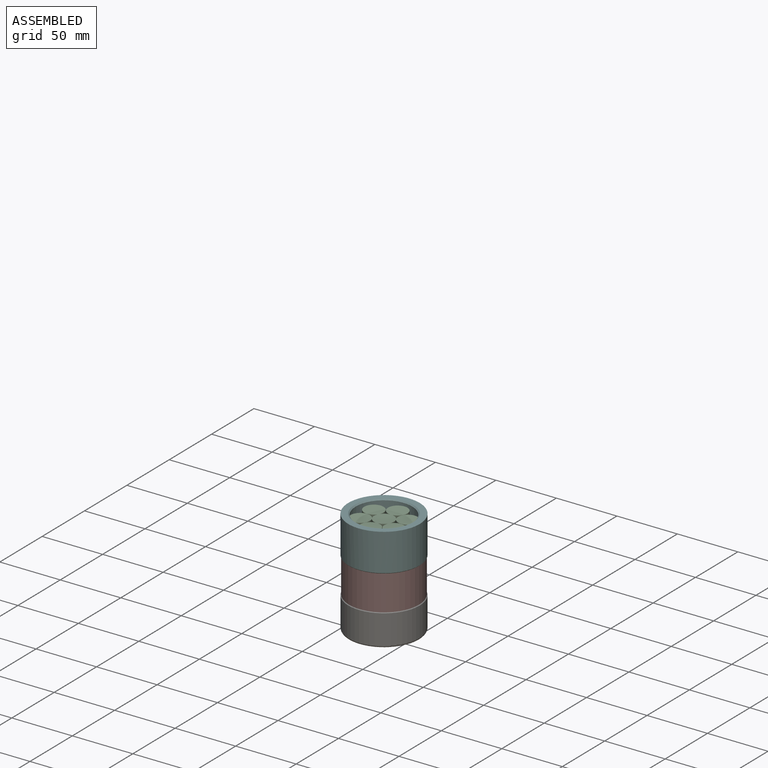
[diagram: assembled view]
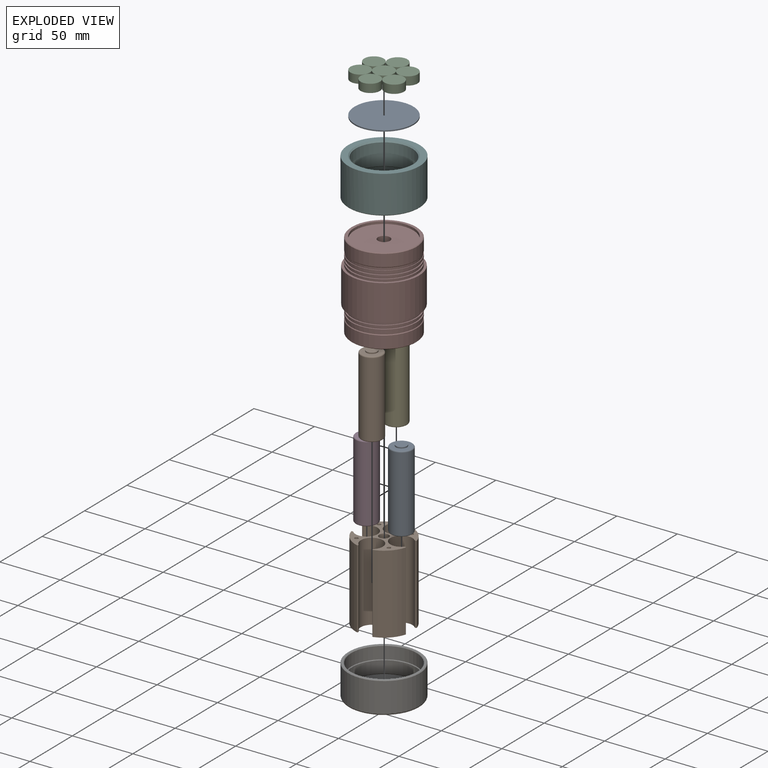
[diagram: exploded view]
GUIDED TOUR — MATED ASSEMBLY (Onshape document c5e5688a3280cf139b239090, AutoMate assembly c5e5688a3280cf139b239090_5ce9f32d915b6a077fe3f920_f21071393717250572982cae_default)

This assembly has 10 components, labeled P0..P9 below (a component is one placed occurrence of a part; the same part can appear more than once), held together by 9 mates. A mate is a constraint between two components; its type names the relative motion it leaves free:
  FASTENED — locks the two components together rigidly (no relative motion).
Axis/direction vectors are unit vectors and 'through' points are millimeter coordinates, both in the assembly's world frame.

MATES
  1. FASTENED "Fastened 3": P0 <-> P9, direction (0.000, 0.000, -1.000) through (-45.72, -31.81, -96.39) mm
  2. FASTENED "Fastened 5": P3 <-> P9, direction (0.000, 0.000, -1.000) through (-74.52, -31.81, -96.39) mm
  3. FASTENED "Fastened 9": P5 <-> P7, direction (0.000, 0.000, -1.000) through (-60.12, -31.81, -45.89) mm
  4. FASTENED "Fastened 7": P8 <-> P7, direction (0.000, 0.000, -1.000) through (-60.12, -31.81, -26.39) mm
  5. FASTENED "Fastened 4": P4 <-> P9, direction (0.000, 0.000, -1.000) through (-60.12, -17.41, -96.39) mm
  6. FASTENED "Fastened 8": P6 <-> P7, direction (0.000, 0.000, 1.000) through (-60.12, -31.81, -96.39) mm
  7. FASTENED "Fastened 1": P1 <-> P9, direction (0.000, 0.000, -1.000) through (-60.12, -46.21, -96.39) mm
  8. FASTENED "Fastened 6": P9 <-> P7, direction (0.000, 0.000, 1.000) through (-60.12, -31.81, -31.39) mm
  9. FASTENED "Fastened 2": P2 <-> P8, direction (0.000, 0.000, -1.000) through (-60.12, -31.81, -25.39) mm

ASSEMBLY ORDER
  1. P9 — the base component [order heuristic]
  2. P0 — core [order heuristic]
  3. P1 — core [order heuristic]
  4. P3 — core [order heuristic]
  5. P4 — core [order heuristic]
  6. P7 — core [order heuristic]
  7. P6 — core [order heuristic]
  8. P5 — core [order heuristic]
  9. P8 [order verified]
  10. P2 [order verified]
Order-tag legend:
  [order verified] — this step's position reverses a verified removal order: the component was checked to insert without passing through the ones already placed.
  [order heuristic] — the first 8 components form the assembly's core: parts whose collision-free extraction could not be verified, listed in mate-graph order.

Of the 10 components, 1 carries the full construction recipe — the FeatureScript program that regenerates the part's solid from scratch; the rest are supplied as boundary geometry only.
Each toured component is shown spotlighted twice — in the assembled view, then in the exploded view, where a leader line traces a displaced component back to its assembled socket (saturated green if recipe-attached, orange if geometry-only; every other component desaturated gray) — followed by its recipe or geometry summary and the mates that hold it.
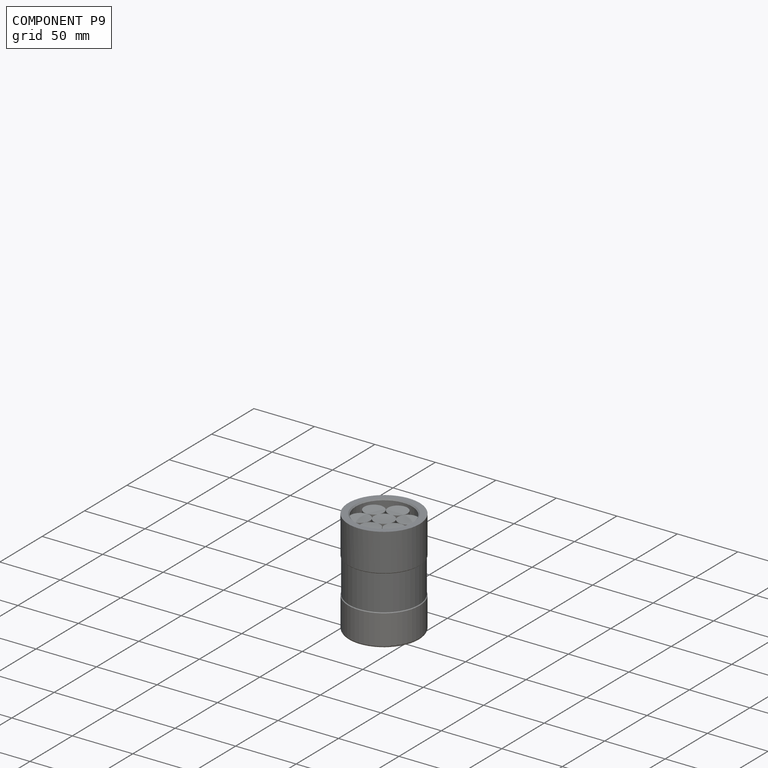
[diagram: component P9 — assembled]
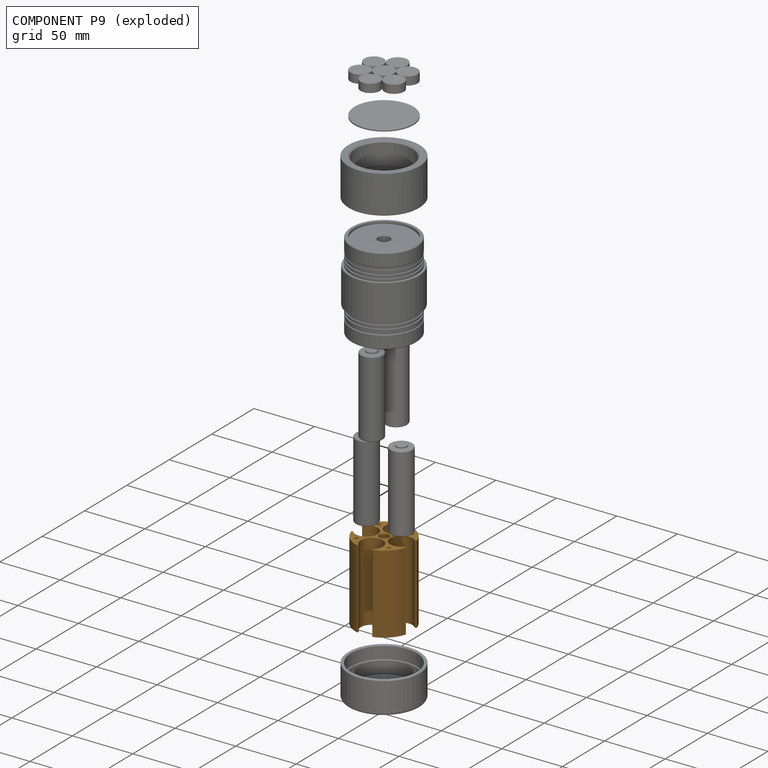
[diagram: component P9 — exploded]
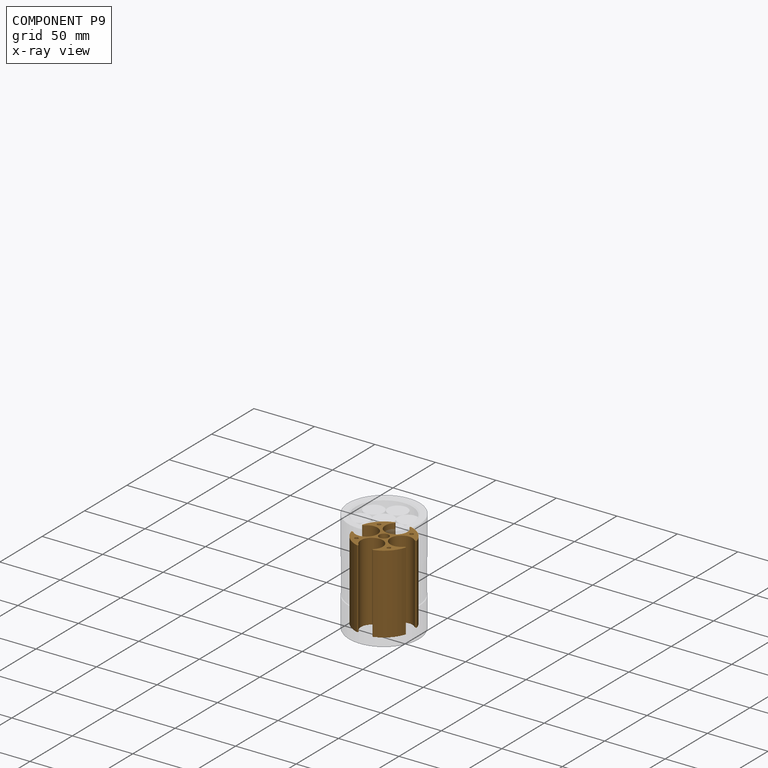
[diagram: component P9 — x-ray view]
COMPONENT P9 — geometry summary (no construction recipe available for this part):
  bounding box: 65.0 x 45.1 x 45.1 mm
  B-rep topology: 1 solid, 39 faces, 222 edges
  volume: 38557 mm^3 (29% of its bounding box)
  symmetry: 2-fold rotationally symmetric about the x axis; 2-fold rotationally symmetric about the y axis; 4-fold rotationally symmetric about the z axis; mirror-symmetric across its x mid-plane, y mid-plane, z mid-plane
Held by: FASTENED mate "Fastened 3" to P0; FASTENED mate "Fastened 5" to P3; FASTENED mate "Fastened 4" to P4; FASTENED mate "Fastened 1" to P1; FASTENED mate "Fastened 6" to P7.
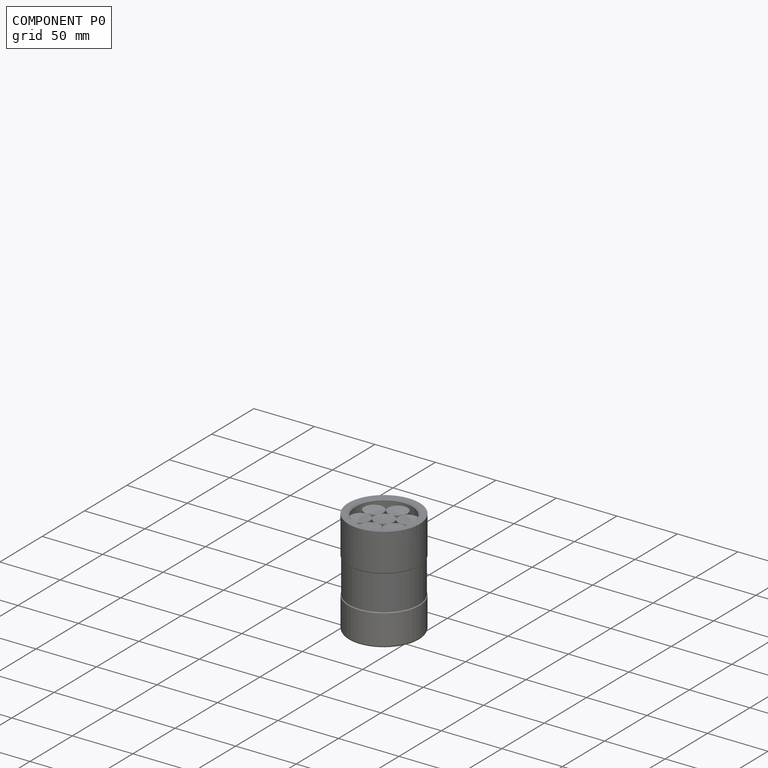
[diagram: component P0 — assembled]
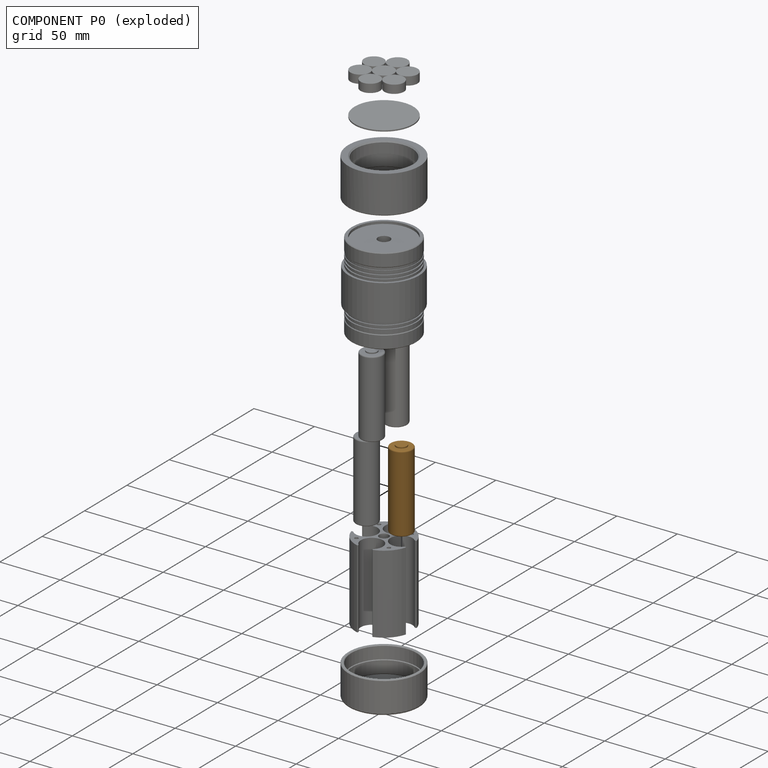
[diagram: component P0 — exploded]
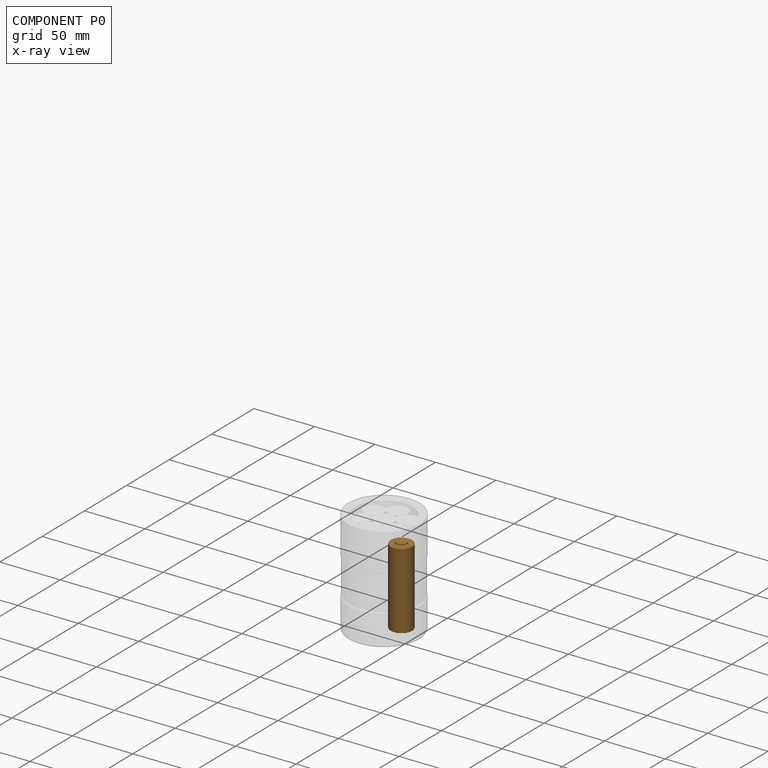
[diagram: component P0 — x-ray view]
COMPONENT P0 — geometry summary (no construction recipe available for this part):
  bounding box: 65.0 x 19.6 x 19.6 mm
  B-rep topology: 1 solid, 7 faces, 20 edges
  volume: 16507 mm^3 (66% of its bounding box)
  symmetry: revolution-symmetric about the z axis through its bounding-box center; mirror-symmetric across its x mid-plane, y mid-plane
Held by: FASTENED mate "Fastened 3" to P9.
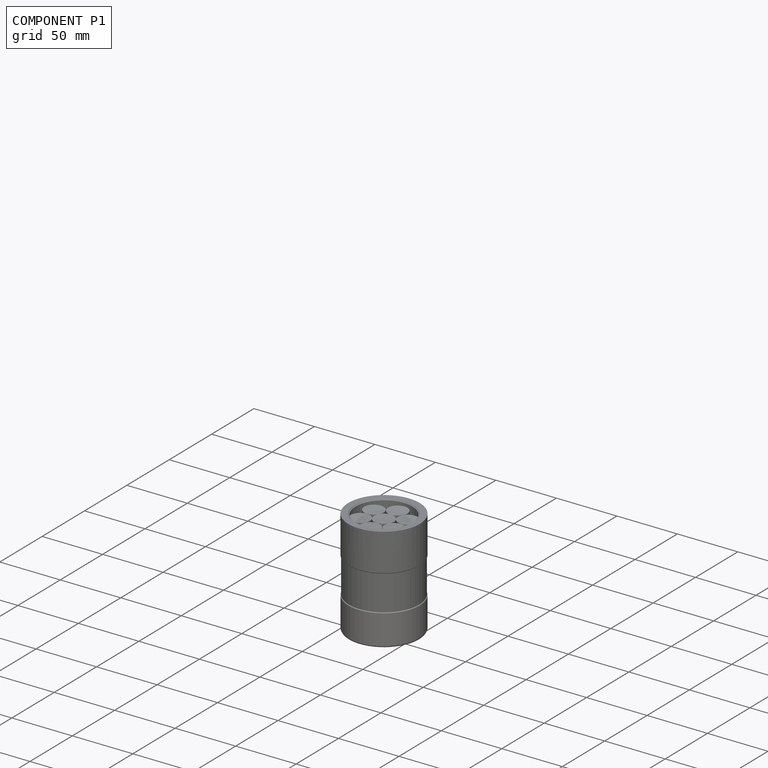
[diagram: component P1 — assembled]
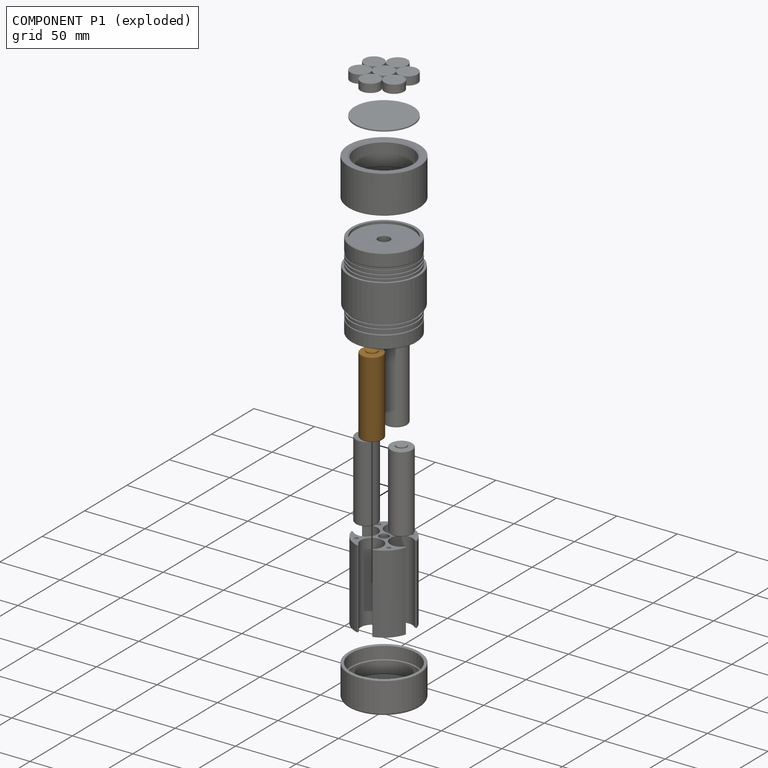
[diagram: component P1 — exploded]
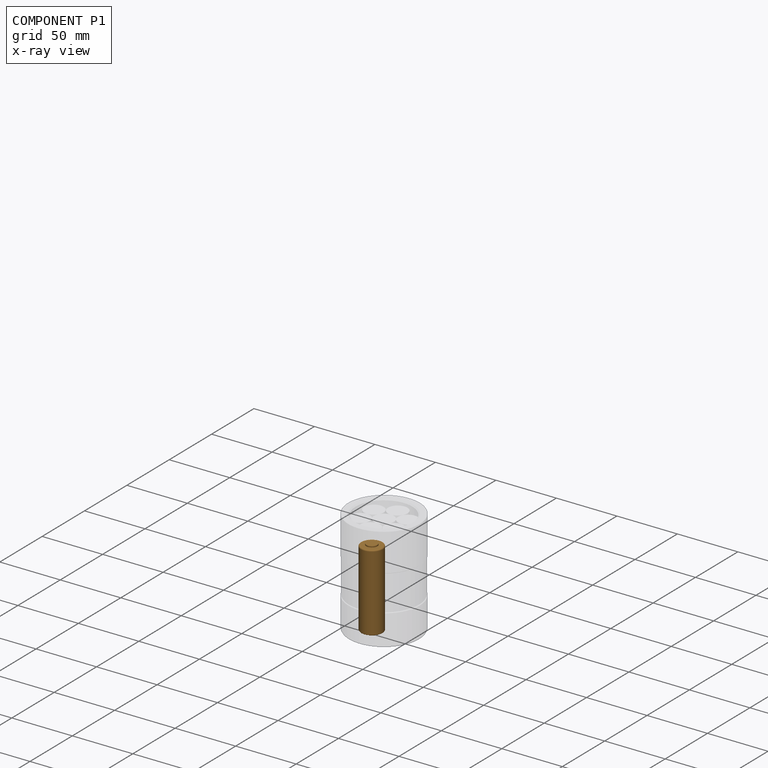
[diagram: component P1 — x-ray view]
COMPONENT P1 — geometry summary (no construction recipe available for this part):
  bounding box: 65.0 x 19.6 x 19.6 mm
  B-rep topology: 1 solid, 7 faces, 20 edges
  volume: 16507 mm^3 (66% of its bounding box)
  symmetry: revolution-symmetric about the z axis through its bounding-box center; mirror-symmetric across its x mid-plane, y mid-plane
Held by: FASTENED mate "Fastened 1" to P9.
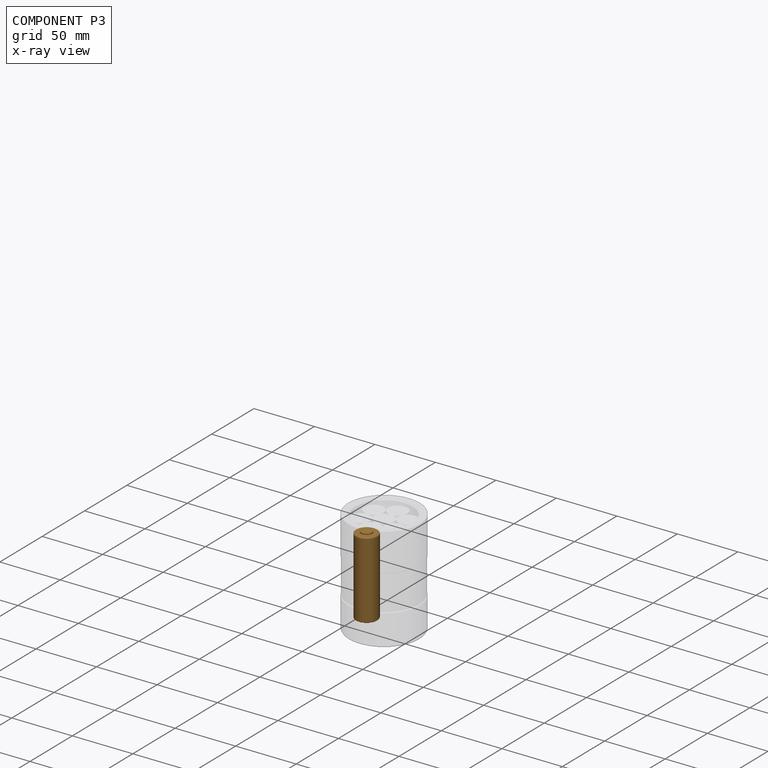
[diagram: component P3 — x-ray view]
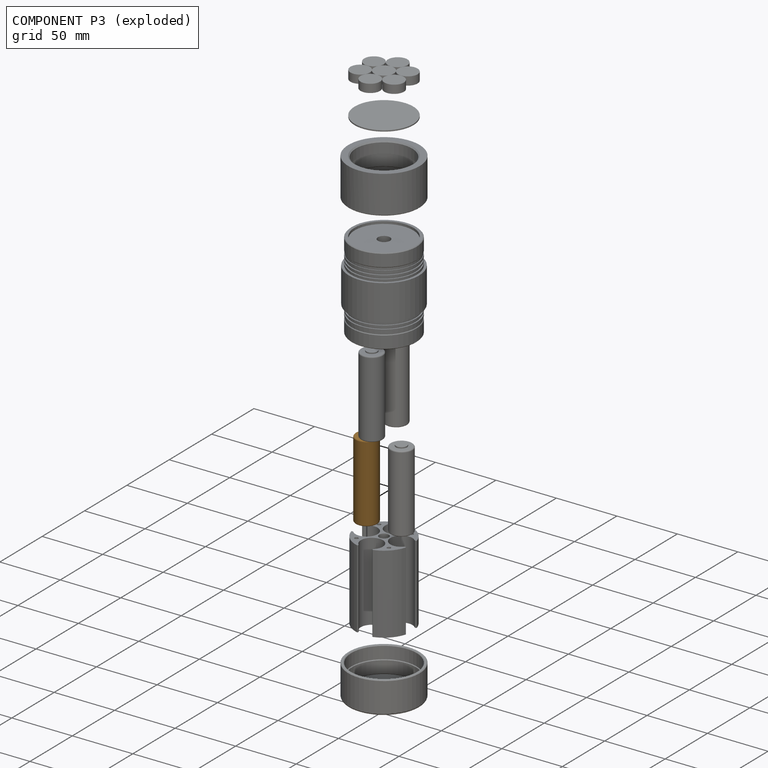
[diagram: component P3 — exploded]
COMPONENT P3 — geometry summary (no construction recipe available for this part):
  bounding box: 65.0 x 19.6 x 19.6 mm
  B-rep topology: 1 solid, 7 faces, 20 edges
  volume: 16507 mm^3 (66% of its bounding box)
  symmetry: revolution-symmetric about the z axis through its bounding-box center; mirror-symmetric across its x mid-plane, y mid-plane
Held by: FASTENED mate "Fastened 5" to P9.
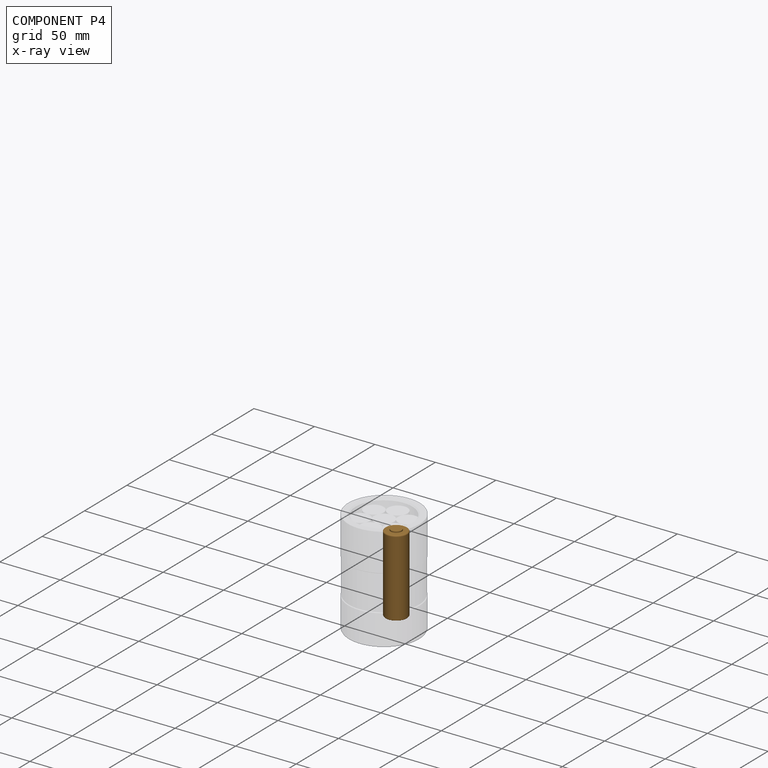
[diagram: component P4 — x-ray view]
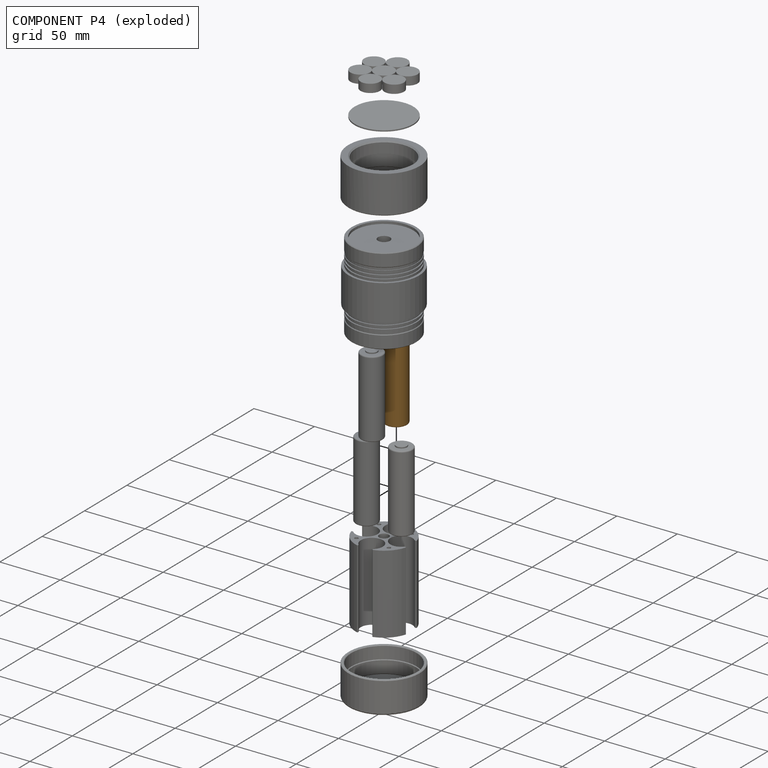
[diagram: component P4 — exploded]
COMPONENT P4 — geometry summary (no construction recipe available for this part):
  bounding box: 65.0 x 19.6 x 19.6 mm
  B-rep topology: 1 solid, 7 faces, 20 edges
  volume: 16507 mm^3 (66% of its bounding box)
  symmetry: revolution-symmetric about the z axis through its bounding-box center; mirror-symmetric across its x mid-plane, y mid-plane
Held by: FASTENED mate "Fastened 4" to P9.
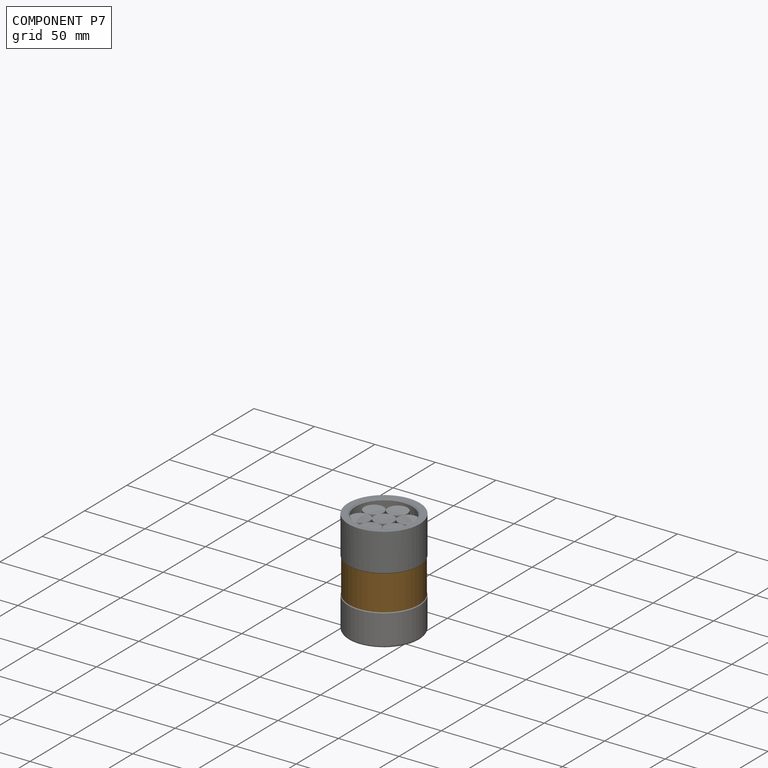
[diagram: component P7 — assembled]
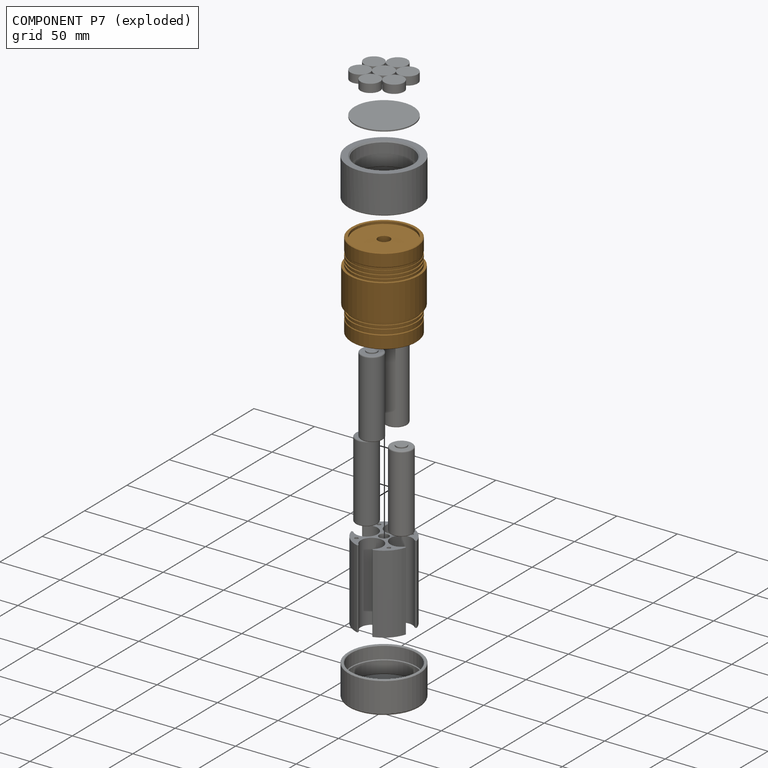
[diagram: component P7 — exploded]
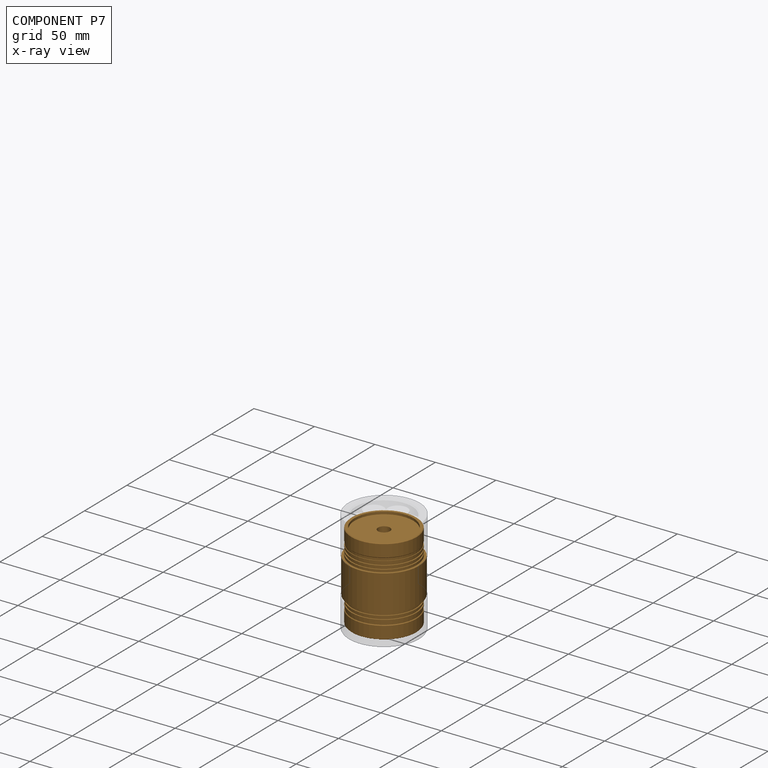
[diagram: component P7 — x-ray view]
COMPONENT P7 — geometry summary (no construction recipe available for this part):
  bounding box: 72.0 x 58.0 x 58.0 mm
  B-rep topology: 1 solid, 38 faces, 120 edges
  volume: 56821 mm^3 (23% of its bounding box)
  symmetry: revolution-symmetric about the z axis through its bounding-box center; mirror-symmetric across its x mid-plane, y mid-plane
Held by: FASTENED mate "Fastened 9" to P5; FASTENED mate "Fastened 7" to P8; FASTENED mate "Fastened 8" to P6; FASTENED mate "Fastened 6" to P9.
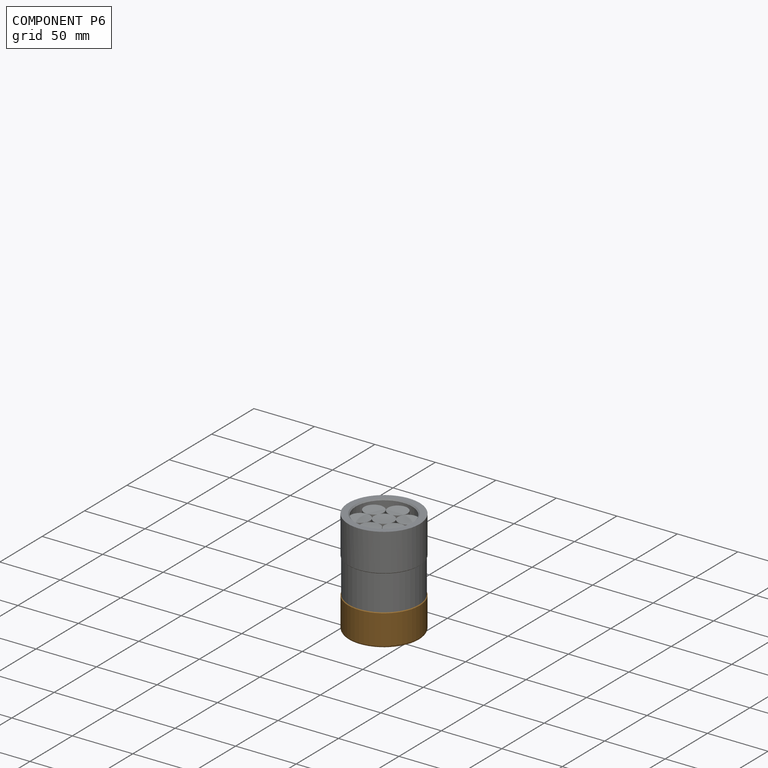
[diagram: component P6 — assembled]
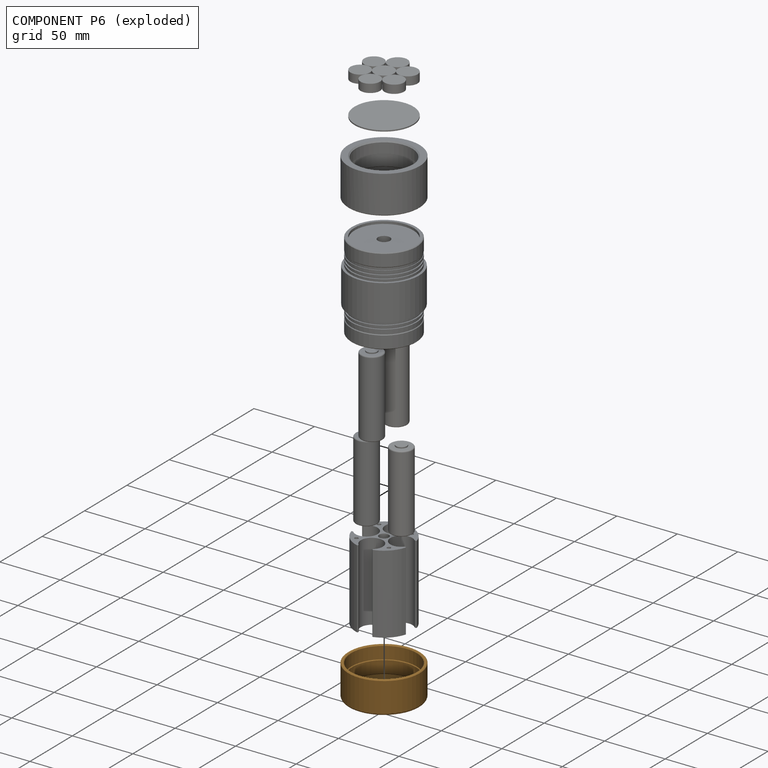
[diagram: component P6 — exploded]
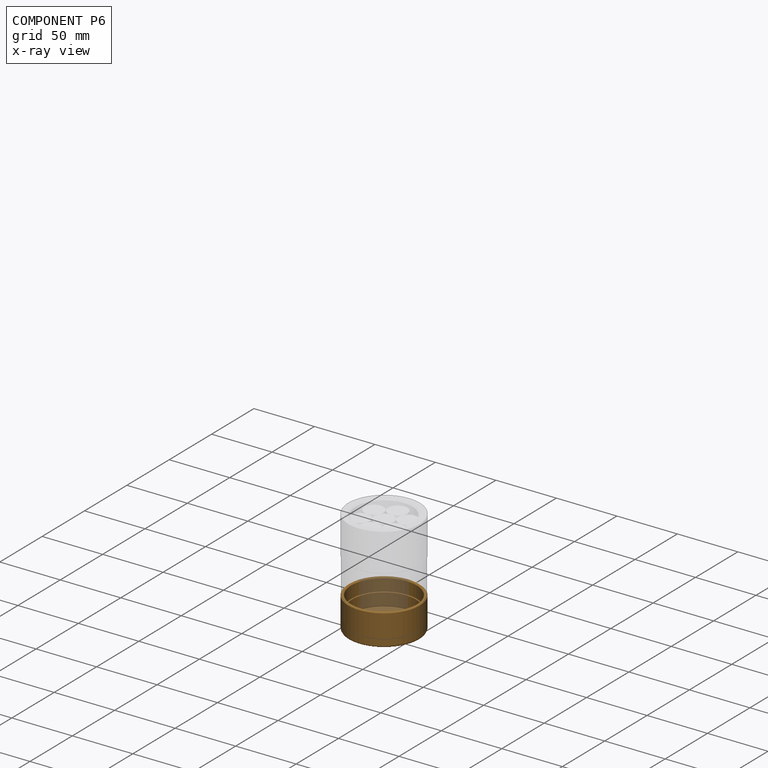
[diagram: component P6 — x-ray view]
COMPONENT P6 — geometry summary (no construction recipe available for this part):
  bounding box: 63.9 x 63.9 x 26.5 mm
  B-rep topology: 1 solid, 11 faces, 36 edges
  volume: 23892 mm^3 (22% of its bounding box)
  symmetry: revolution-symmetric about the z axis through its bounding-box center; mirror-symmetric across its x mid-plane, y mid-plane
Held by: FASTENED mate "Fastened 8" to P7.
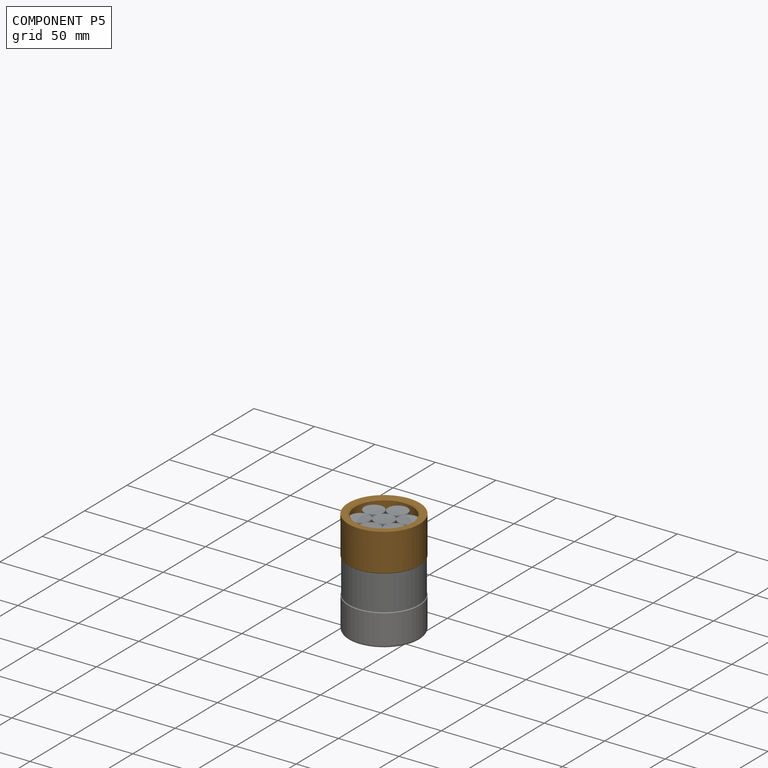
[diagram: component P5 — assembled]
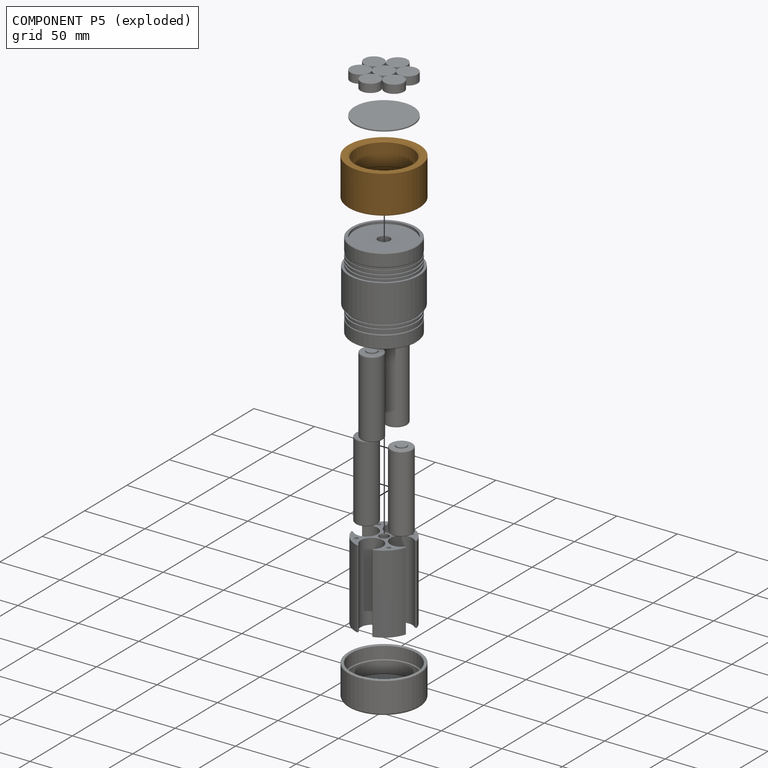
[diagram: component P5 — exploded]
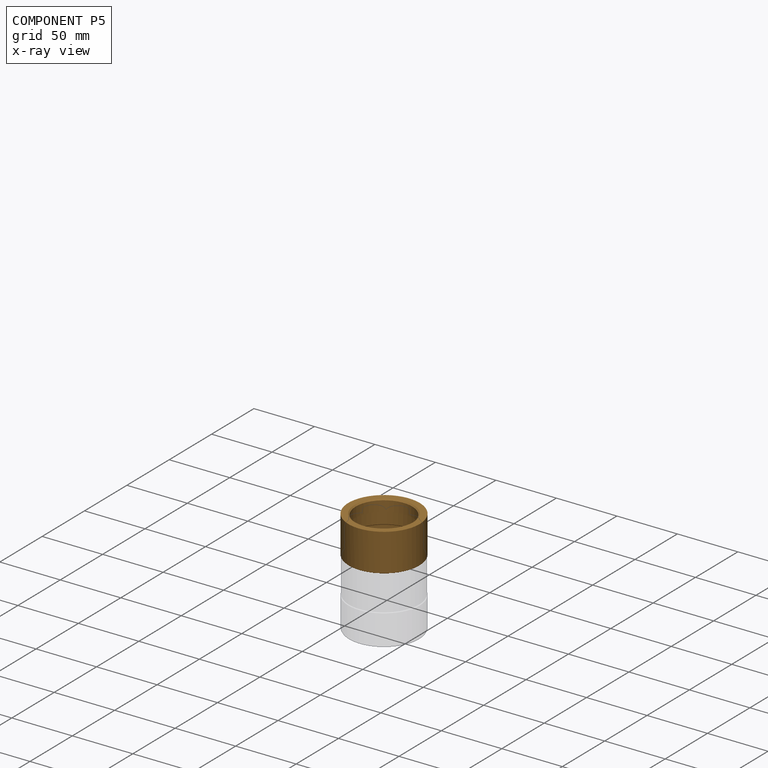
[diagram: component P5 — x-ray view]
COMPONENT P5 — geometry summary (no construction recipe available for this part):
  bounding box: 59.0 x 59.0 x 31.4 mm
  B-rep topology: 1 solid, 14 faces, 52 edges
  volume: 19380 mm^3 (18% of its bounding box)
  symmetry: revolution-symmetric about the z axis through its bounding-box center; mirror-symmetric across its x mid-plane, y mid-plane
Held by: FASTENED mate "Fastened 9" to P7.
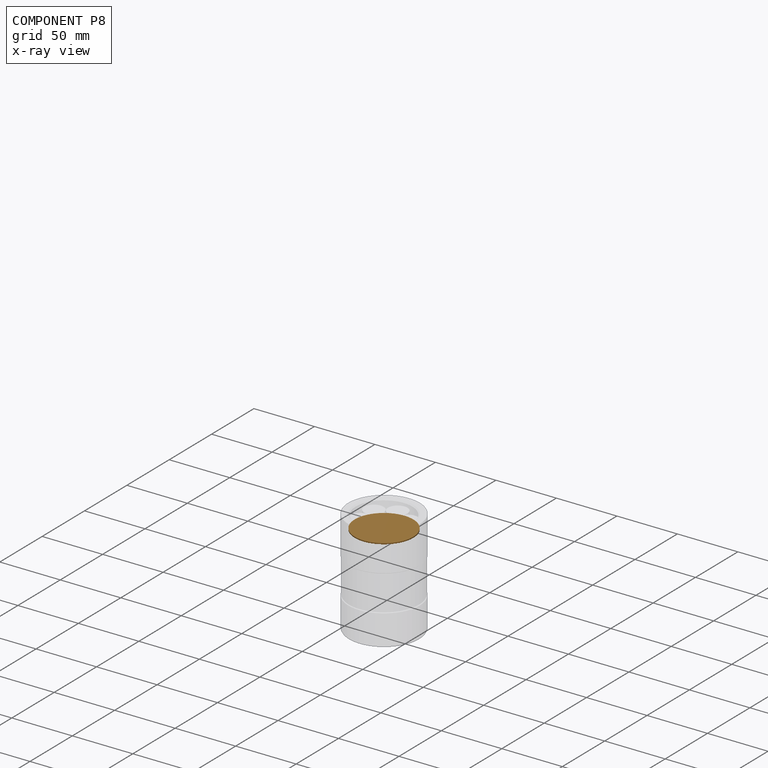
[diagram: component P8 — x-ray view]
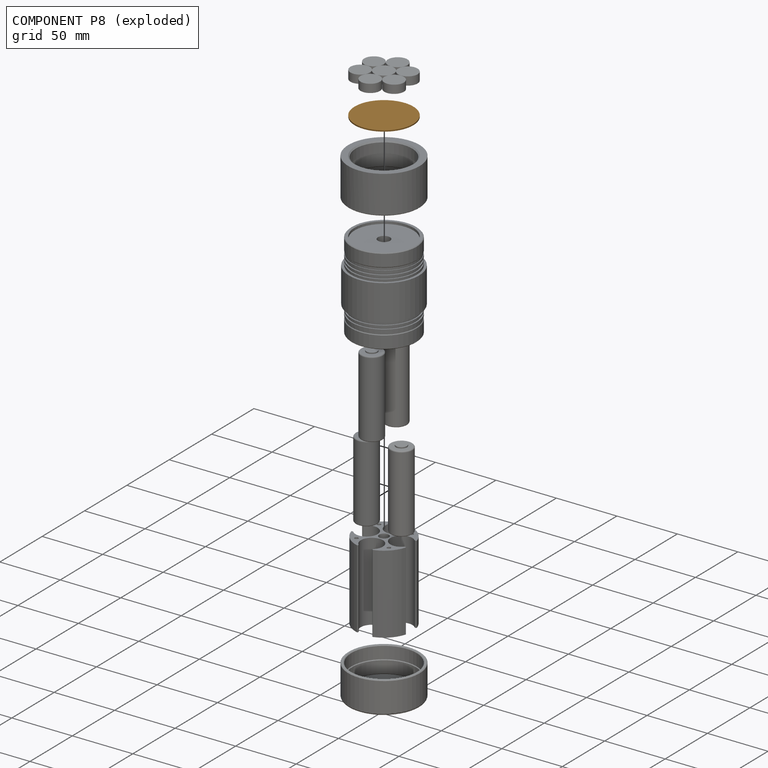
[diagram: component P8 — exploded]
COMPONENT P8 — geometry summary (no construction recipe available for this part):
  bounding box: 48.5 x 48.5 x 1.0 mm
  B-rep topology: 1 solid, 3 faces, 6 edges
  volume: 1847 mm^3 (79% of its bounding box)
  symmetry: 2-fold rotationally symmetric about the x axis; 2-fold rotationally symmetric about the y axis; revolution-symmetric about the z axis through its bounding-box center; mirror-symmetric across its x mid-plane, y mid-plane, z mid-plane
Held by: FASTENED mate "Fastened 7" to P7; FASTENED mate "Fastened 2" to P2.
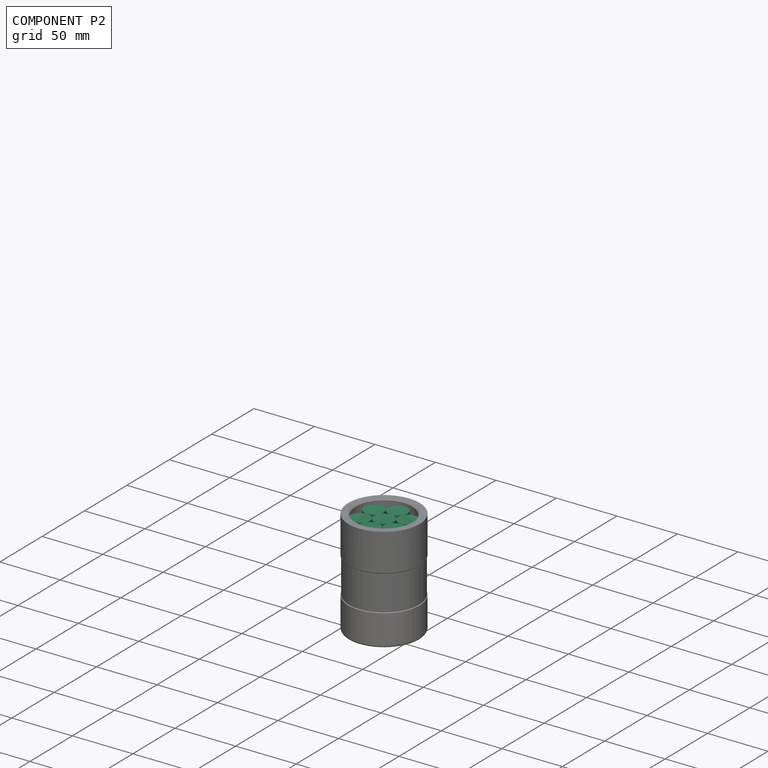
[diagram: component P2 — assembled]
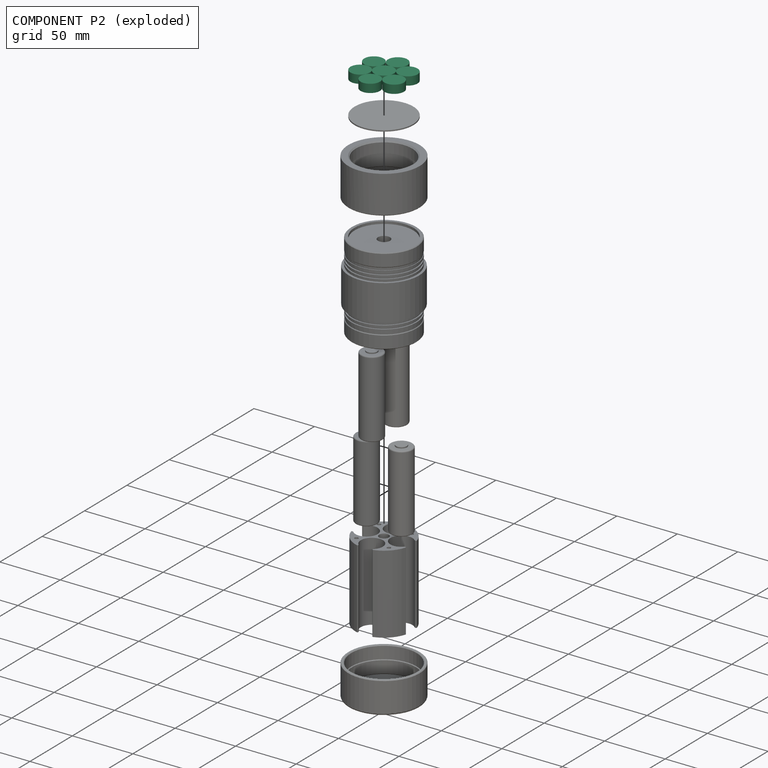
[diagram: component P2 — exploded]
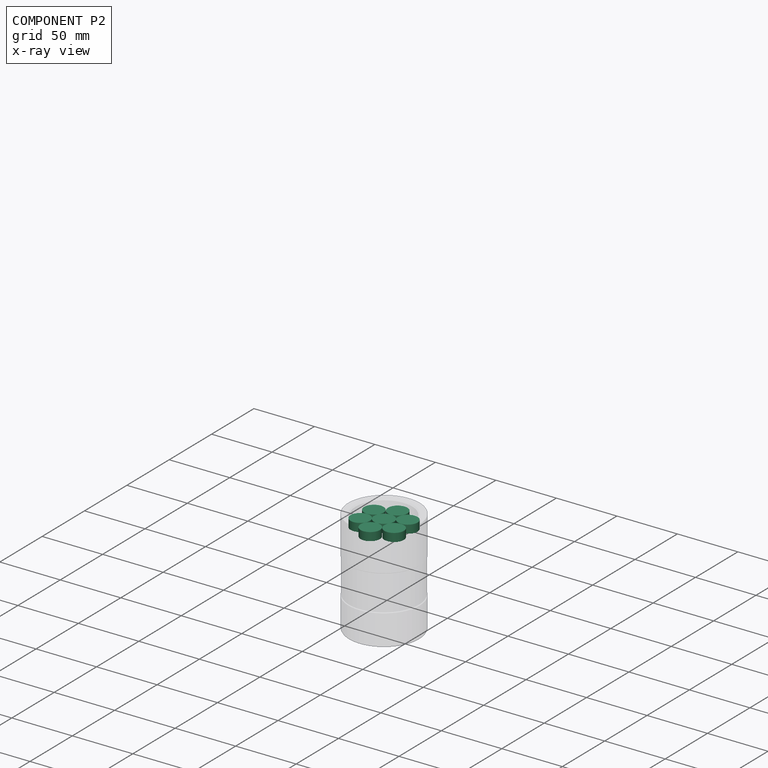
[diagram: component P2 — x-ray view]
COMPONENT P2 — recipe-attached (CADFS 00172383, mesh-verified: the recipe's output STEP matches this component's geometry to below the mesh-comparison resolution (tessellation chordal tolerance ~0.0989 mm)).
Held by: FASTENED mate "Fastened 2" to P8.
Construction recipe (FeatureScript — the CAD program that rebuilds this solid; sketch coordinates are in the units given by the * unit suffixes, e.g. mm):

FeatureScript 1511;
import(path : "onshape/std/geometry.fs", version : "1511.0");
import(path : "onshape/std/common.fs", version : "1511.0");
const mm = millimeter;
const VERTEX = EntityType.VERTEX;
const EDGE = EntityType.EDGE;
const FACE = EntityType.FACE;
const BODY = EntityType.BODY;
function v(x, y){return vector(x, y);}
function OD(order){return orderDisambiguation(order);}
function OSD(set){return originalSetDisambiguation(set);}
function TD(topology){return topologyDisambiguation(topology);}
function TDD(query){return trueDependencyDisambiguation(query);}
function sQuery(a, b, c) {return sketchEntityQuery(a, b, c);}

annotation { "Feature Type Name" : "Feature", "Feature Type Description" : "" }
export const myFeature = defineFeature(function(context is Context, id is Id, definition is map)
    precondition{}
    {
        {
            var Q0;
            Q0=qCreatedBy(makeId("Top.planeOp"),FACE);
            var sketch = newSketch(context, id + "F0", { "sketchPlane" : qUnion([Q0])});
            skArc(sketch, "E0", {"start": v(-31.54, -5.15) * mm, "mid": v(-32.44, 10.9) * mm, "end": v(-33.34, -5.15) * mm});
            skCircle(sketch, "E1", {"center": v(-32.44, -13.35) * mm, "radius": 24.25 * mm, "construction": true});
            skArc(sketch, "E2.1.0", {"start": v(-39.09, -8.47) * mm, "mid": v(-53.44, -1.23) * mm, "end": v(-39.99, -10.03) * mm});
            skArc(sketch, "E2.2.0", {"start": v(-39.99, -16.67) * mm, "mid": v(-53.44, -25.48) * mm, "end": v(-39.09, -18.23) * mm});
            skArc(sketch, "E2.3.0", {"start": v(-33.34, -21.55) * mm, "mid": v(-32.44, -37.6) * mm, "end": v(-31.54, -21.55) * mm});
            skArc(sketch, "E2.4.0", {"start": v(-25.79, -18.23) * mm, "mid": v(-11.44, -25.48) * mm, "end": v(-24.88, -16.67) * mm});
            skArc(sketch, "E3", {"start": v(-39.99, -10.03) * mm, "mid": v(-40.69, -13.35) * mm, "end": v(-39.99, -16.67) * mm});
            skArc(sketch, "E4.1.5.0", {"start": v(-24.88, -10.03) * mm, "mid": v(-11.44, -1.23) * mm, "end": v(-25.79, -8.47) * mm});
            skArc(sketch, "E5.trimOffspring", {"start": v(-39.09, -18.23) * mm, "mid": v(-36.56, -20.5) * mm, "end": v(-33.34, -21.55) * mm});
            skArc(sketch, "E6.trimOffspring", {"start": v(-33.34, -5.15) * mm, "mid": v(-36.56, -6.2) * mm, "end": v(-39.09, -8.47) * mm});
            skArc(sketch, "E7.trimOffspring", {"start": v(-25.79, -8.47) * mm, "mid": v(-28.31, -6.2) * mm, "end": v(-31.54, -5.15) * mm});
            skArc(sketch, "E8.trimOffspring", {"start": v(-24.88, -16.67) * mm, "mid": v(-24.19, -13.35) * mm, "end": v(-24.88, -10.03) * mm});
            skArc(sketch, "E9.trimOffspring", {"start": v(-31.54, -21.55) * mm, "mid": v(-28.31, -20.5) * mm, "end": v(-25.79, -18.23) * mm});
            skSolve(sketch);
        }
        {
            var Q0;
            Q0 = qSketchRegion(id + "F0", true);
            extrude(context, id + "F1", {"entities" : qUnion([Q0]), "depth" : 6.9 * mm});
        }
    });
PROVENANCE & LICENSES
Assembly (occurrences, transforms, mates, per-part STEP geometry): AutoMate dataset, Zenodo record 7776208, CC0.
Construction recipes: CADFS (HuggingFace VladPyatov/CADFS, CC-BY-4.0, layered over the ABC dataset), FeatureScript reconstruction programs keyed by ABC model id.
Join: ABC meta listings map ABC model id -> Onshape documentId; within a shared document, parts are matched by geometric signature (bounding-box dims + volume at 0.1% relative tolerance, exact B-rep face/solid counts).
Verification: 1 of this assembly's 10 components carries a recipe attachment, and every attachment is mesh-verified: the CADFS STEP and the AutoMate member STEP were compared as meshes in their shared local frame (symmetric sampled-point-to-mesh distance); worst across the 1 attachment: below the mesh-comparison resolution (tessellation chordal tolerance ~0.0989 mm) on a 66 mm part.
Renders: orthographic iso camera (az 35 / el 25); the floor grid conveys scale (grid pitch printed in each image; no ruler). In the exploded view each component is displaced by its stored offset vector: the offsets alone carry the explosion direction (mate normal/axis signs are not orientation cues and do not encode it), and separation distances are assigned per mate-chain, not proportionally to assembly-order depth.
